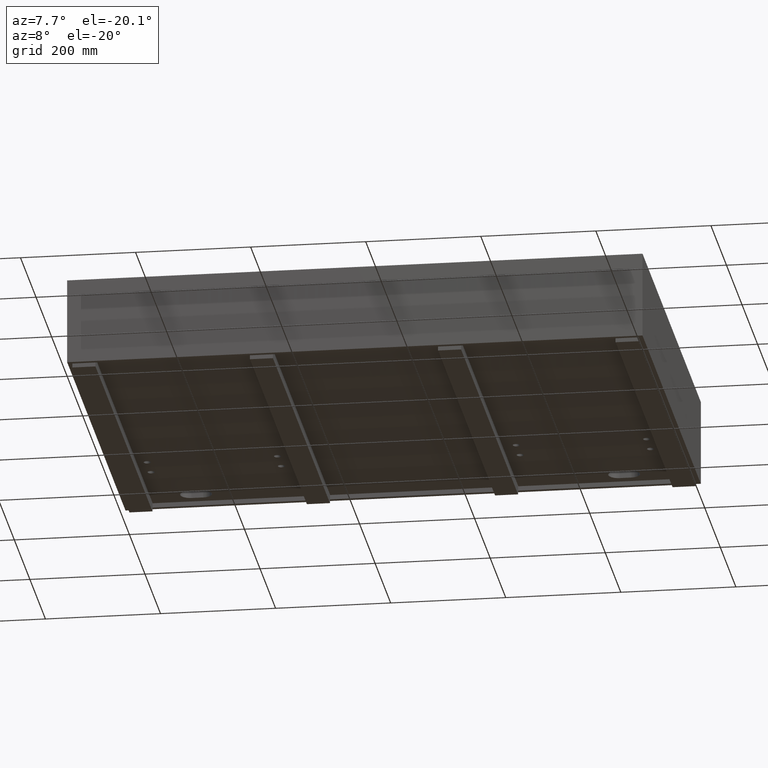
[diagram: clean part render]
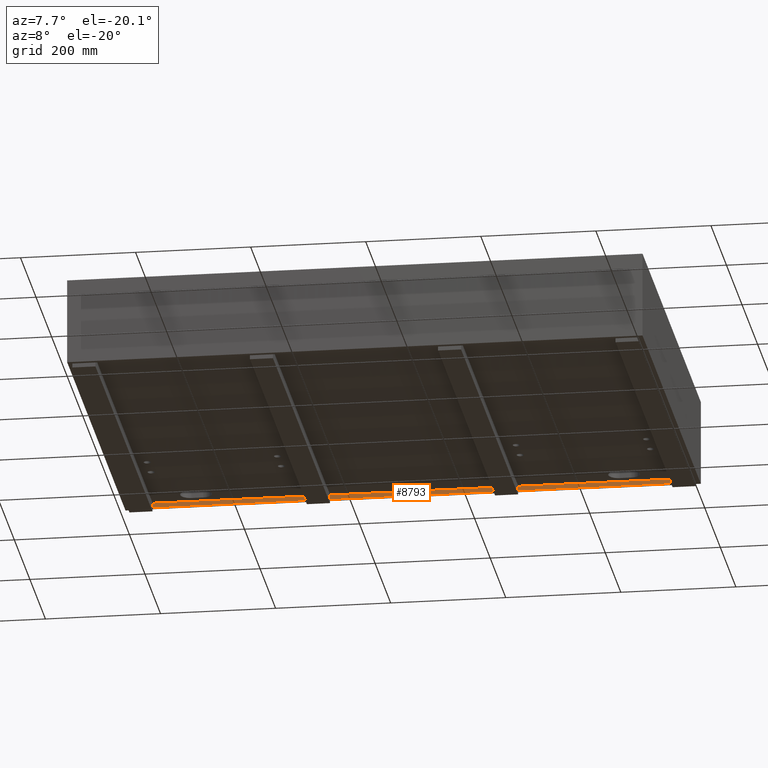
[diagram: same view with one face highlighted and labeled with its STEP entity id]
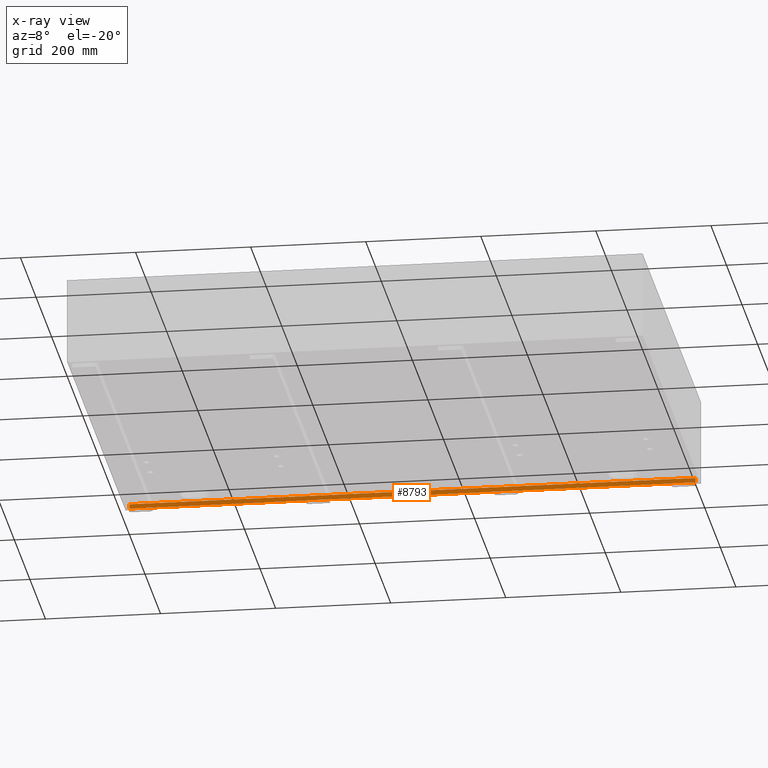
[diagram: x-ray of the same camera — body ghosted, the highlighted face saturated]
A machine part, auxiliary view. The second image highlights one B-rep face of the part: STEP entity #8793.
The next image is the same camera in x-ray: the body ghosted, the highlighted face saturated — about 0% of this face is hidden behind the body in this view.
In plain terms, the highlighted planar face has unit normal (-0, 1, 0).
Its self-contained STEP definition (entity closure, byte-faithful):
#2 = LINE ( 'NONE', #5738, #4968 ) ;
#792 = AXIS2_PLACEMENT_3D ( 'NONE', #6634, #12361, #18103 ) ;
#889 = PLANE ( 'NONE',  #792 ) ;
#1901 = EDGE_CURVE ( 'NONE', #2050, #4202, #16916, .T. ) ;
#2050 = VERTEX_POINT ( 'NONE', #6005 ) ;
#3655 = VECTOR ( 'NONE', #4692, 1000.000000000000000 ) ;
#4019 = CARTESIAN_POINT ( 'NONE',  ( 0.0000000000000000000, 741.9999000000000251, -150.0000000000000000 ) ) ;
#4202 = VERTEX_POINT ( 'NONE', #12414 ) ;
#4692 = DIRECTION ( 'NONE',  ( 9.253491529673047263E-35, 0.0000000000000000000, 1.000000000000000000 ) ) ;
#4968 = VECTOR ( 'NONE', #11482, 1000.000000000000000 ) ;
#5086 = CARTESIAN_POINT ( 'NONE',  ( 1000.000000000000000, 741.9999000000000251, -142.0000000000000853 ) ) ;
#5738 = CARTESIAN_POINT ( 'NONE',  ( 8.000000000000117240, 741.9999000000000251, -150.0000000000000000 ) ) ;
#6005 = CARTESIAN_POINT ( 'NONE',  ( 992.0000000000000000, 741.9999000000000251, -150.0000000000000000 ) ) ;
#6151 = ORIENTED_EDGE ( 'NONE', *, *, #11267, .T. ) ;
#6634 = CARTESIAN_POINT ( 'NONE',  ( 0.0000000000000000000, 741.9999000000000251, 0.0000000000000000000 ) ) ;
#6655 = EDGE_CURVE ( 'NONE', #18015, #4202, #2, .T. ) ;
#8793 = ADVANCED_FACE ( 'NONE', ( #13759 ), #889, .F. ) ;
#8809 = VERTEX_POINT ( 'NONE', #10968 ) ;
#9786 = DIRECTION ( 'NONE',  ( -1.000000000000000000, 9.629649721936179265E-35, -9.253491529673047263E-35 ) ) ;
#10844 = DIRECTION ( 'NONE',  ( 1.000000000000000000, -4.814824860968089633E-35, 5.551115123125782702E-17 ) ) ;
#10968 = CARTESIAN_POINT ( 'NONE',  ( 992.0000000000000000, 741.9999000000000251, -142.0000000000000853 ) ) ;
#11267 = EDGE_CURVE ( 'NONE', #2050, #8809, #11849, .T. ) ;
#11482 = DIRECTION ( 'NONE',  ( -9.253491529673047263E-35, 0.0000000000000000000, -1.000000000000000000 ) ) ;
#11849 = LINE ( 'NONE', #17571, #3655 ) ;
#11860 = VECTOR ( 'NONE', #10844, 1000.000000000000000 ) ;
#12229 = ORIENTED_EDGE ( 'NONE', *, *, #15255, .F. ) ;
#12361 = DIRECTION ( 'NONE',  ( -9.629649721936179265E-35, 1.000000000000000000, 8.910788213565484970E-69 ) ) ;
#12414 = CARTESIAN_POINT ( 'NONE',  ( 8.000000000000117240, 741.9999000000000251, -150.0000000000000000 ) ) ;
#13053 = ORIENTED_EDGE ( 'NONE', *, *, #6655, .T. ) ;
#13759 = FACE_OUTER_BOUND ( 'NONE', #14326, .T. ) ;
#14326 = EDGE_LOOP ( 'NONE', ( #6151, #12229, #13053, #16041 ) ) ;
#15255 = EDGE_CURVE ( 'NONE', #18015, #8809, #17972, .T. ) ;
#15742 = VECTOR ( 'NONE', #9786, 1000.000000000000000 ) ;
#16041 = ORIENTED_EDGE ( 'NONE', *, *, #1901, .F. ) ;
#16715 = CARTESIAN_POINT ( 'NONE',  ( 8.000000000000117240, 741.9999000000000251, -142.0000000000001421 ) ) ;
#16916 = LINE ( 'NONE', #4019, #15742 ) ;
#17571 = CARTESIAN_POINT ( 'NONE',  ( 992.0000000000000000, 741.9999000000000251, 0.0000000000000000000 ) ) ;
#17972 = LINE ( 'NONE', #5086, #11860 ) ;
#18015 = VERTEX_POINT ( 'NONE', #16715 ) ;
#18103 = DIRECTION ( 'NONE',  ( 9.253491529673047263E-35, 0.0000000000000000000, 1.000000000000000000 ) ) ;